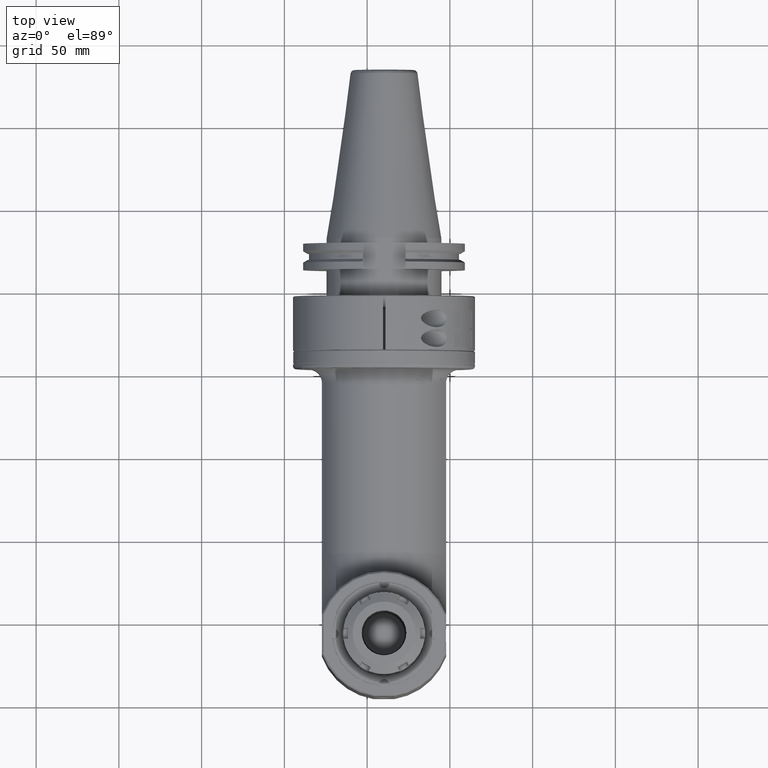
[diagram: clean part render]
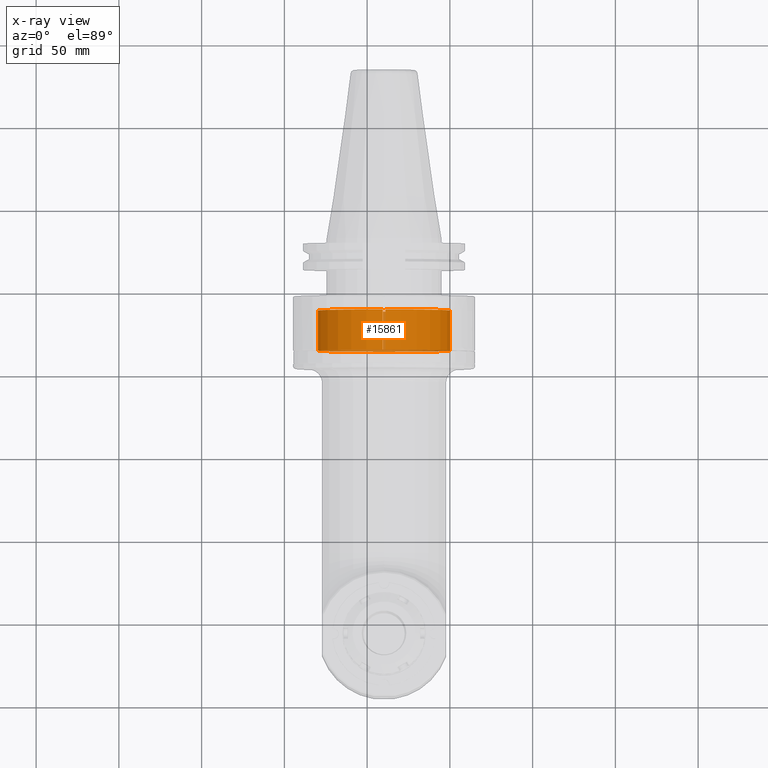
[diagram: x-ray — body ghosted, one internal face saturated and labeled with its STEP entity id]
A machine part, top view, then the same camera in x-ray: the body is ghosted and one INTERNAL B-rep face — a face not visible from any outside direction — is saturated and labeled: STEP entity #15861.
In plain terms, the highlighted cylindrical surface (partial cylindrical patch) has radius 40 mm, axis along (0, -1, 0).
Its self-contained STEP definition (entity closure, byte-faithful):
#957=CIRCLE('',#17022,40.);
#958=CIRCLE('',#17024,40.);
#1545=CYLINDRICAL_SURFACE('',#17023,40.);
#1775=FACE_OUTER_BOUND('',#2715,.T.);
#2715=EDGE_LOOP('',(#10891,#10892,#10893,#10894));
#3908=LINE('',#23988,#5230);
#3917=LINE('',#24039,#5239);
#5230=VECTOR('',#19081,24.29997746596);
#5239=VECTOR('',#19122,24.299977464);
#6700=VERTEX_POINT('',#23985);
#6701=VERTEX_POINT('',#23987);
#6717=VERTEX_POINT('',#24034);
#6718=VERTEX_POINT('',#24038);
#8339=EDGE_CURVE('',#6700,#6701,#3908,.T.);
#8360=EDGE_CURVE('',#6700,#6717,#957,.T.);
#8362=EDGE_CURVE('',#6718,#6717,#3917,.T.);
#8363=EDGE_CURVE('',#6718,#6701,#958,.T.);
#10891=ORIENTED_EDGE('',*,*,#8360,.T.);
#10892=ORIENTED_EDGE('',*,*,#8362,.F.);
#10893=ORIENTED_EDGE('',*,*,#8363,.T.);
#10894=ORIENTED_EDGE('',*,*,#8339,.F.);
#15861=ADVANCED_FACE('',(#1775),#1545,.F.);
#17022=AXIS2_PLACEMENT_3D('',#24035,#19117,#19118);
#17023=AXIS2_PLACEMENT_3D('',#24037,#19120,#19121);
#17024=AXIS2_PLACEMENT_3D('',#24040,#19123,#19124);
#19081=DIRECTION('',(2.80119472453E-9,-1.,-5.248459487194E-11));
#19117=DIRECTION('center_axis',(0.,1.,0.));
#19118=DIRECTION('ref_axis',(-1.,0.,0.));
#19120=DIRECTION('center_axis',(0.,-1.,0.));
#19121=DIRECTION('ref_axis',(-2.18675588266103E-13,0.,-1.));
#19122=DIRECTION('',(2.802678824756E-9,1.,5.251442015446E-11));
#19123=DIRECTION('center_axis',(0.,-1.,0.));
#19124=DIRECTION('ref_axis',(-0.0187500000001192,0.,0.999824203297758));
#23985=CARTESIAN_POINT('',(0.750000012352181,24.4999957462393,39.9929683538407));
#23987=CARTESIAN_POINT('',(0.750000035660989,0.200026305009094,39.9929685435649));
#23988=CARTESIAN_POINT('',(0.7500000144219,24.49999723247,39.99296899809));
#24034=CARTESIAN_POINT('',(-0.750000012328616,24.4999957454516,39.9929683531509));
#24035=CARTESIAN_POINT('Origin',(4.209965809379E-13,24.49999532782,3.339550958072E-13));
#24037=CARTESIAN_POINT('Origin',(0.,34.65,0.));
#24038=CARTESIAN_POINT('',(-0.750000037794003,0.200026407827812,39.9929685008527));
#24039=CARTESIAN_POINT('',(-0.750000082491,0.2000197674946,39.99296899583));
#24040=CARTESIAN_POINT('Origin',(-2.415845201584E-13,0.2000265285676,2.497557726197E-12));